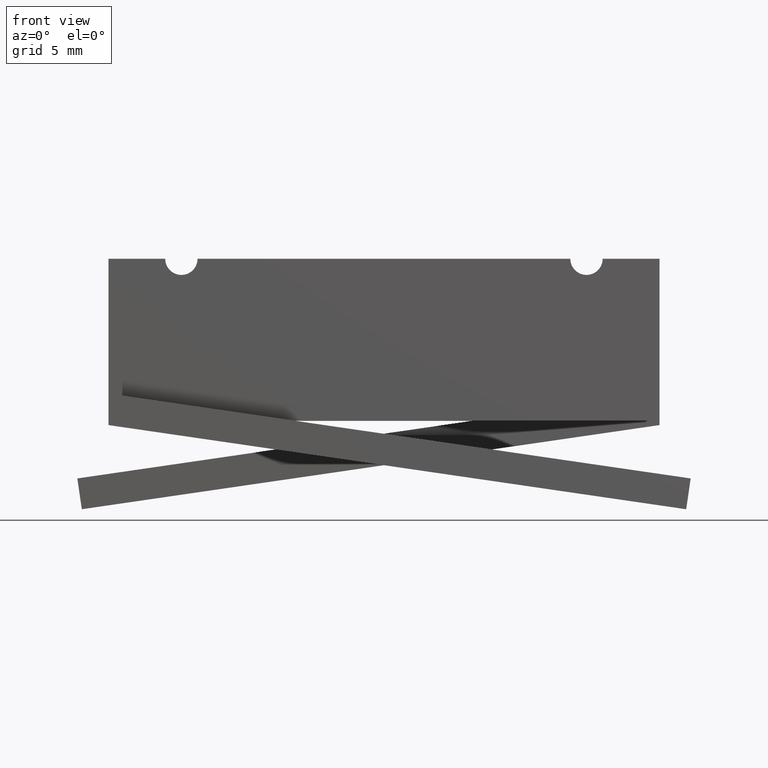
[diagram: clean part render]
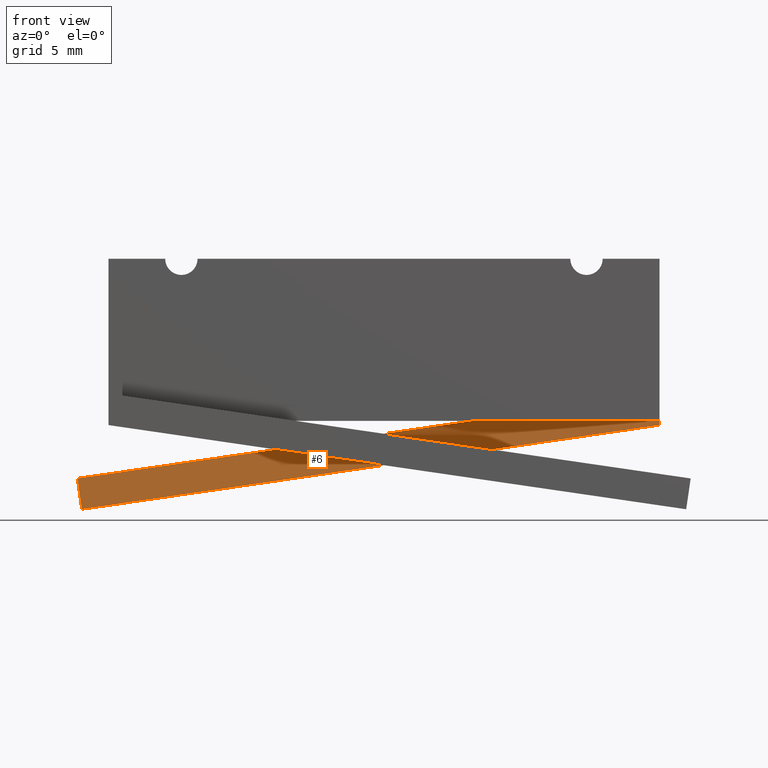
[diagram: same view with one face highlighted and labeled with its STEP entity id]
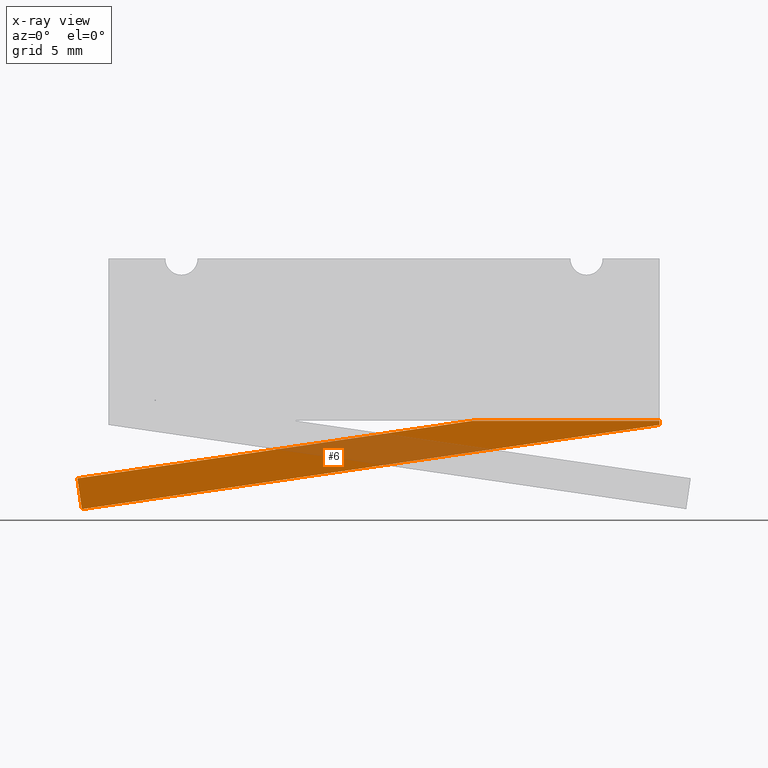
[diagram: x-ray of the same camera — body ghosted, the highlighted face saturated]
A machine part, front view. The second image highlights one B-rep face of the part: STEP entity #6.
The next image is the same camera in x-ray: the body ghosted, the highlighted face saturated — about 22% of this face is hidden behind the body in this view.
In plain terms, the highlighted planar face has unit normal (0, 1, 0).
Its self-contained STEP definition (entity closure, byte-faithful):
#6 = ADVANCED_FACE ( 'NONE', ( #191 ), #300, .F. ) ;
#101 = ORIENTED_EDGE ( 'NONE', *, *, #669, .F. ) ;
#103 = ORIENTED_EDGE ( 'NONE', *, *, #685, .T. ) ;
#104 = ORIENTED_EDGE ( 'NONE', *, *, #678, .F. ) ;
#105 = ORIENTED_EDGE ( 'NONE', *, *, #658, .F. ) ;
#106 = ORIENTED_EDGE ( 'NONE', *, *, #688, .F. ) ;
#191 = FACE_OUTER_BOUND ( 'NONE', #205, .T. ) ;
#205 = EDGE_LOOP ( 'NONE', ( #101, #103, #104, #105, #106 ) ) ;
#261 = VERTEX_POINT ( 'NONE', #389 ) ;
#266 = VERTEX_POINT ( 'NONE', #394 ) ;
#271 = VERTEX_POINT ( 'NONE', #399 ) ;
#286 = VERTEX_POINT ( 'NONE', #414 ) ;
#287 = VERTEX_POINT ( 'NONE', #415 ) ;
#299 = CARTESIAN_POINT ( 'NONE',  ( 0.5312499999999995600, 0.2187500000000000300, -0.3206331384499130900 ) ) ;
#300 = PLANE ( 'NONE',  #730 ) ;
#305 = DIRECTION ( 'NONE',  ( 0.0000000000000000000, 1.000000000000000000, 0.0000000000000000000 ) ) ;
#306 = DIRECTION ( 'NONE',  ( 0.0000000000000000000, -0.0000000000000000000, 1.000000000000000000 ) ) ;
#389 = CARTESIAN_POINT ( 'NONE',  ( 0.5312500000000000000, 0.2187500000000000300, -0.3125000000000000000 ) ) ;
#394 = CARTESIAN_POINT ( 'NONE',  ( 0.5312500000000000000, 0.2187500000000000300, -0.3206331384499130900 ) ) ;
#399 = CARTESIAN_POINT ( 'NONE',  ( 0.1708142201834721700, 0.2187500000000000300, -0.3125000000000010500 ) ) ;
#414 = CARTESIAN_POINT ( 'NONE',  ( -0.5912499999999999400, 0.2187500000000000300, -0.4234999999999999900 ) ) ;
#415 = CARTESIAN_POINT ( 'NONE',  ( -0.5826018371384010800, 0.2187500000000000300, -0.4828734728571544800 ) ) ;
#438 = CARTESIAN_POINT ( 'NONE',  ( -0.5912499999999999400, 0.2187500000000000300, -0.4234999999999999900 ) ) ;
#441 = DIRECTION ( 'NONE',  ( -0.1441360476933142800, -0.0000000000000000000, 0.9895578809525749100 ) ) ;
#455 = CARTESIAN_POINT ( 'NONE',  ( 0.5312500000000000000, 0.2187500000000000300, -0.3206331384499130900 ) ) ;
#464 = DIRECTION ( 'NONE',  ( -0.0000000000000000000, -0.0000000000000000000, -1.000000000000000000 ) ) ;
#474 = CARTESIAN_POINT ( 'NONE',  ( 0.5312500000000000000, 0.2187500000000000300, -0.2600000000000000100 ) ) ;
#480 = DIRECTION ( 'NONE',  ( 0.9895578809525748000, -0.0000000000000000000, 0.1441360476933149500 ) ) ;
#487 = CARTESIAN_POINT ( 'NONE',  ( -0.5312500000000000000, 0.2187500000000000300, -0.3125000000000000000 ) ) ;
#495 = DIRECTION ( 'NONE',  ( -1.000000000000000000, -0.0000000000000000000, -0.0000000000000000000 ) ) ;
#500 = CARTESIAN_POINT ( 'NONE',  ( -0.5826018371384010800, 0.2187500000000000300, -0.4828734728571544800 ) ) ;
#501 = DIRECTION ( 'NONE',  ( -0.9895578809525749100, -0.0000000000000000000, -0.1441360476933148400 ) ) ;
#586 = VECTOR ( 'NONE', #464, 39.37007874015748100 ) ;
#592 = LINE ( 'NONE', #487, #798 ) ;
#596 = VECTOR ( 'NONE', #480, 39.37007874015748900 ) ;
#599 = LINE ( 'NONE', #474, #596 ) ;
#658 = EDGE_CURVE ( 'NONE', #287, #286, #826, .T. ) ;
#669 = EDGE_CURVE ( 'NONE', #261, #266, #777, .T. ) ;
#678 = EDGE_CURVE ( 'NONE', #286, #271, #599, .T. ) ;
#685 = EDGE_CURVE ( 'NONE', #261, #271, #592, .T. ) ;
#688 = EDGE_CURVE ( 'NONE', #266, #287, #804, .T. ) ;
#730 = AXIS2_PLACEMENT_3D ( 'NONE', #299, #305, #306 ) ;
#767 = VECTOR ( 'NONE', #441, 39.37007874015748900 ) ;
#777 = LINE ( 'NONE', #455, #586 ) ;
#798 = VECTOR ( 'NONE', #495, 39.37007874015748100 ) ;
#804 = LINE ( 'NONE', #500, #805 ) ;
#805 = VECTOR ( 'NONE', #501, 39.37007874015748100 ) ;
#826 = LINE ( 'NONE', #438, #767 ) ;